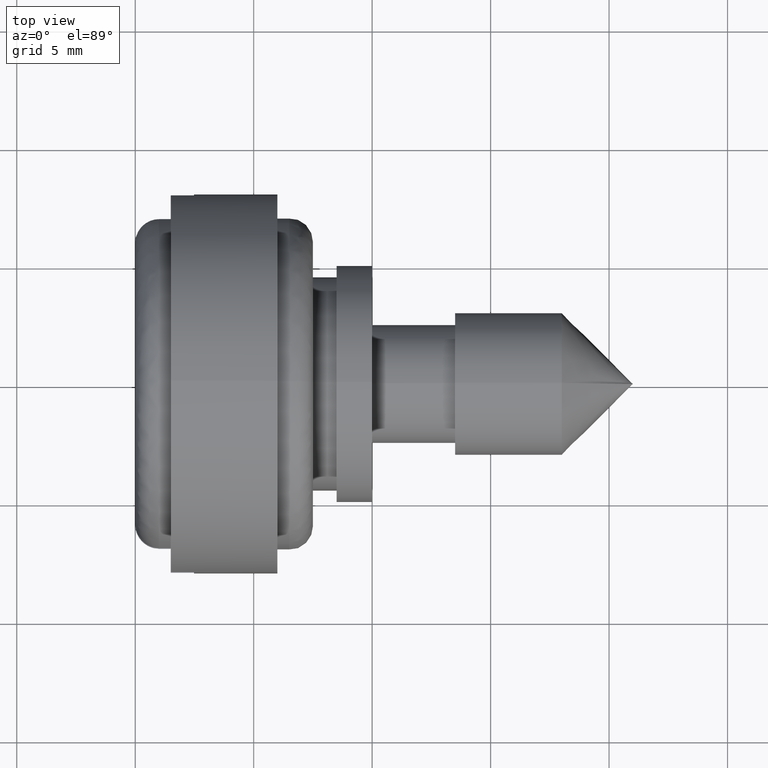
[diagram: clean part render]
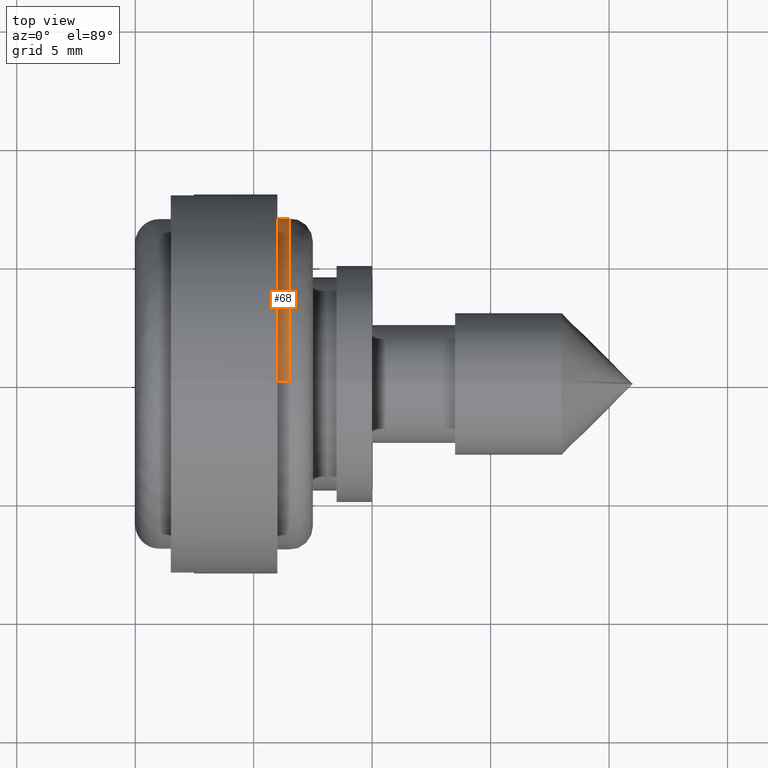
[diagram: same view with one face highlighted and labeled with its STEP entity id]
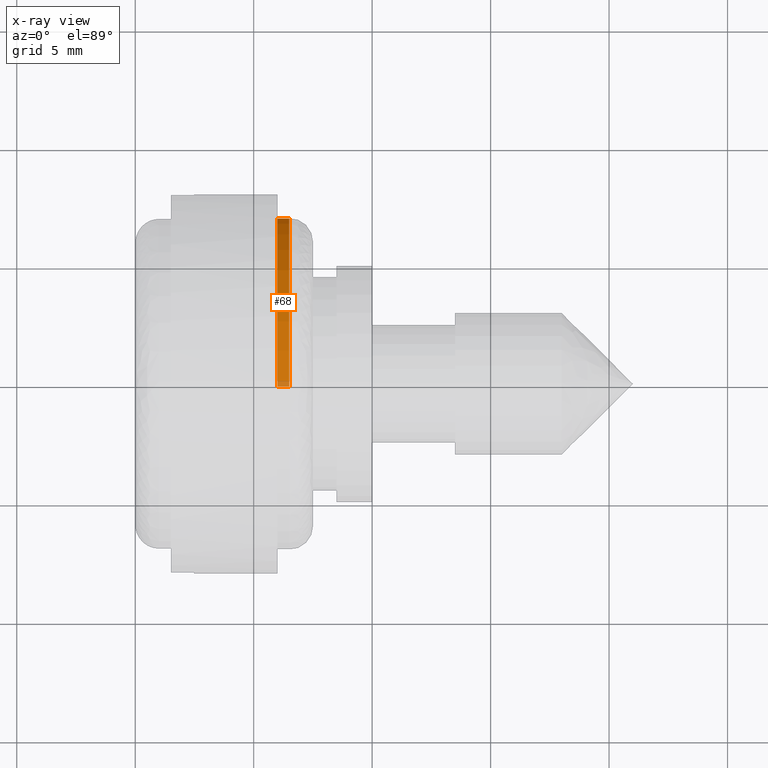
[diagram: x-ray of the same camera — body ghosted, the highlighted face saturated]
A machine part, top view. The second image highlights one B-rep face of the part: STEP entity #68.
The next image is the same camera in x-ray: the body ghosted, the highlighted face saturated — about 3% of this face is hidden behind the body in this view.
In plain terms, the highlighted cylindrical surface (partial cylindrical patch) has radius 7 mm, axis along (1, -0, -0).
Its self-contained STEP definition (entity closure, byte-faithful):
#68=ADVANCED_FACE('',(#358),#357,.T.);
#357=CYLINDRICAL_SURFACE('',#641,7.00000000000E+00);
#358=FACE_OUTER_BOUND('',#642,.T.);
#638=CARTESIAN_POINT('',(0.00000000000E+00,0.00000000000E+00,0.00000000000E+00));
#639=DIRECTION('',(1.00000000000E+00,-0.00000000000E+00,-0.00000000000E+00));
#640=DIRECTION('',(0.00000000000E+00,0.00000000000E+00,-1.00000000000E+00));
#641=AXIS2_PLACEMENT_3D('',#638,#639,#640);
#642=EDGE_LOOP('',(#778,#779,#780,#781));
#778=ORIENTED_EDGE('',*,*,#869,.T.);
#779=ORIENTED_EDGE('',*,*,#870,.F.);
#780=ORIENTED_EDGE('',*,*,#834,.F.);
#781=ORIENTED_EDGE('',*,*,#871,.T.);
#834=EDGE_CURVE('',#1089,#1090,#1091,.T.);
#869=EDGE_CURVE('',#1304,#1303,#1323,.T.);
#870=EDGE_CURVE('',#1090,#1303,#1329,.T.);
#871=EDGE_CURVE('',#1089,#1304,#1335,.T.);
#1089=VERTEX_POINT('',#1510);
#1090=VERTEX_POINT('',#1511);
#1091=CIRCLE('',#1515,7.00000000000E+00);
#1303=VERTEX_POINT('',#1640);
#1304=VERTEX_POINT('',#1641);
#1323=CIRCLE('',#1657,7.00000000000E+00);
#1329=(BOUNDED_CURVE() B_SPLINE_CURVE(1,(#1658,#1659),.UNSPECIFIED.,.F.,.F.) B_SPLINE_CURVE_WITH_KNOTS((2,2),(8.33332538610E-02,9.16666666064E-01),.UNSPECIFIED.) CURVE() GEOMETRIC_REPRESENTATION_ITEM() RATIONAL_B_SPLINE_CURVE((1.00000000000E+00,1.00000000000E+00)) REPRESENTATION_ITEM('') );
#1335=(BOUNDED_CURVE() B_SPLINE_CURVE(1,(#1660,#1661),.UNSPECIFIED.,.F.,.F.) B_SPLINE_CURVE_WITH_KNOTS((2,2),(8.33333333333E-02,9.16666666667E-01),.UNSPECIFIED.) CURVE() GEOMETRIC_REPRESENTATION_ITEM() RATIONAL_B_SPLINE_CURVE((7.50000000000E-01,7.50000000000E-01)) REPRESENTATION_ITEM('') );
#1510=CARTESIAN_POINT('',(6.00000000000E+00,0.00000000000E+00,7.00000000000E+00));
#1511=CARTESIAN_POINT('',(6.00000000000E+00,2.96059473233E-16,-7.00000000000E+00));
#1512=CARTESIAN_POINT('',(6.00000000000E+00,0.00000000000E+00,0.00000000000E+00));
#1513=DIRECTION('',(-1.00000000000E+00,0.00000000000E+00,0.00000000000E+00));
#1514=DIRECTION('',(0.00000000000E+00,-1.22460635382E-16,1.00000000000E+00));
#1515=AXIS2_PLACEMENT_3D('',#1512,#1513,#1514);
#1640=CARTESIAN_POINT('',(6.50000000000E+00,2.96059473233E-16,-7.00000000000E+00));
#1641=CARTESIAN_POINT('',(6.50000000000E+00,0.00000000000E+00,7.00000000000E+00));
#1654=CARTESIAN_POINT('',(6.50000000000E+00,0.00000000000E+00,0.00000000000E+00));
#1655=DIRECTION('',(-1.00000000000E+00,0.00000000000E+00,0.00000000000E+00));
#1656=DIRECTION('',(0.00000000000E+00,-1.22460635382E-16,1.00000000000E+00));
#1657=AXIS2_PLACEMENT_3D('',#1654,#1655,#1656);
#1658=CARTESIAN_POINT('',(5.99999995232E+00,0.00000000000E+00,-7.00000000000E+00));
#1659=CARTESIAN_POINT('',(6.49999999964E+00,0.00000000000E+00,-7.00000000000E+00));
#1660=CARTESIAN_POINT('',(6.00000000000E+00,0.00000000000E+00,7.00000000000E+00));
#1661=CARTESIAN_POINT('',(6.50000000000E+00,0.00000000000E+00,7.00000000000E+00));